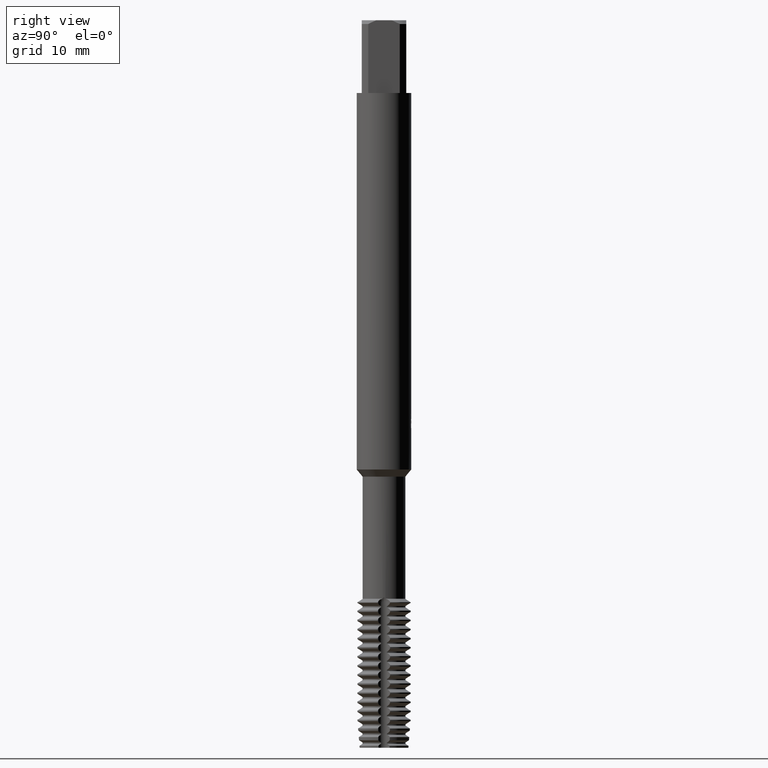
[diagram: clean part render]
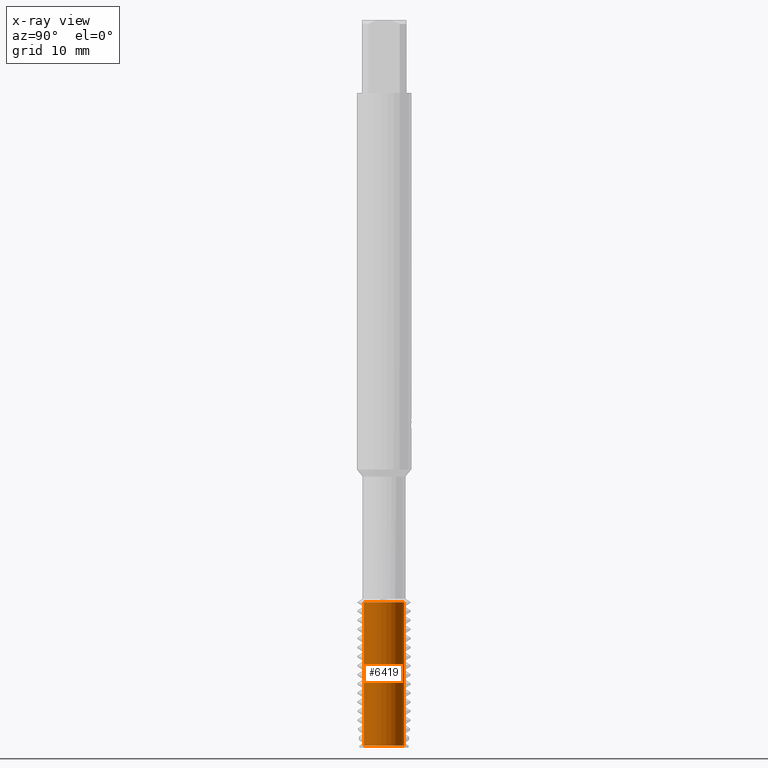
[diagram: x-ray — body ghosted, one internal face saturated and labeled with its STEP entity id]
A machine part, right view, then the same camera in x-ray: the body is ghosted and one INTERNAL B-rep face — a face not visible from any outside direction — is saturated and labeled: STEP entity #6419.
In plain terms, the highlighted cylindrical surface (edge-blend (fillet) strip) has radius 2.2129 mm, axis along (-0, -0, 1).
Its self-contained STEP definition (entity closure, byte-faithful):
#3175=EDGE_CURVE('',#4065,#3559,#8620,.T.);
#3559=VERTEX_POINT('',#9034);
#4065=VERTEX_POINT('',#9574);
#4665=EDGE_CURVE('',#6775,#6527,#10237,.T.);
#4875=EDGE_CURVE('',#6775,#3559,#10474,.T.);
#5661=EDGE_CURVE('',#6527,#4065,#11313,.T.);
#6419=ADVANCED_FACE('',(#12140),#12141,.T.);
#6527=VERTEX_POINT('',#12255);
#6775=VERTEX_POINT('',#12525);
#8620=LINE('',#14980,#14981);
#9034=CARTESIAN_POINT('',(2.7098832855899E-016,-2.21286071,-64.0));
#9574=CARTESIAN_POINT('',(2.7098832855899E-016,-2.21286071,-79.7608501800858));
#10237=LINE('',#17932,#17933);
#10474=CIRCLE('',#18325,2.21286071);
#11313=CIRCLE('',#20129,2.21286071);
#12140=FACE_OUTER_BOUND('',#21608,.T.);
#12141=CYLINDRICAL_SURFACE('',#21609,2.21286071);
#12255=CARTESIAN_POINT('',(0.0,2.21286071,-79.7608501800857));
#12525=CARTESIAN_POINT('',(0.0,2.21286071,-64.0));
#14980=CARTESIAN_POINT('',(2.7098832855899E-016,-2.21286071,-71.8804250900429));
#14981=VECTOR('',#25625,1.0);
#17932=CARTESIAN_POINT('',(-2.7098832855899E-016,2.21286071,-71.8804250900429));
#17933=VECTOR('',#27331,1.0);
#18325=AXIS2_PLACEMENT_3D('',#27752,#27753,#27754);
#20129=AXIS2_PLACEMENT_3D('',#28443,#28444,#28445);
#21608=EDGE_LOOP('',(#29425,#29426,#29427,#29428));
#21609=AXIS2_PLACEMENT_3D('',#29429,#29430,#29431);
#25625=DIRECTION('',(-0.0,-0.0,1.0));
#27331=DIRECTION('',(0.0,0.0,-1.0));
#27752=CARTESIAN_POINT('',(0.0,0.0,-64.0));
#27753=DIRECTION('',(0.0,0.0,-1.0));
#27754=DIRECTION('',(0.0,1.0,0.0));
#28443=CARTESIAN_POINT('',(0.0,0.0,-79.7608501800857));
#28444=DIRECTION('',(0.0,0.0,-1.0));
#28445=DIRECTION('',(0.0,1.0,0.0));
#29425=ORIENTED_EDGE('',*,*,#4665,.F.);
#29426=ORIENTED_EDGE('',*,*,#4875,.T.);
#29427=ORIENTED_EDGE('',*,*,#3175,.F.);
#29428=ORIENTED_EDGE('',*,*,#5661,.F.);
#29429=CARTESIAN_POINT('',(0.0,0.0,-71.8804250900429));
#29430=DIRECTION('',(-0.0,-0.0,1.0));
#29431=DIRECTION('',(0.0,1.0,0.0));